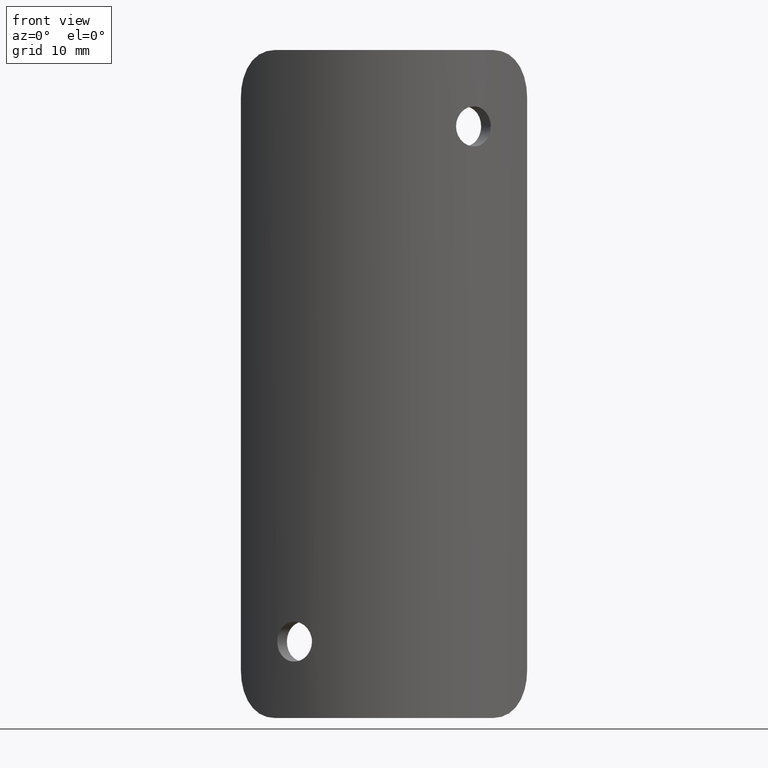
[diagram: clean part render]
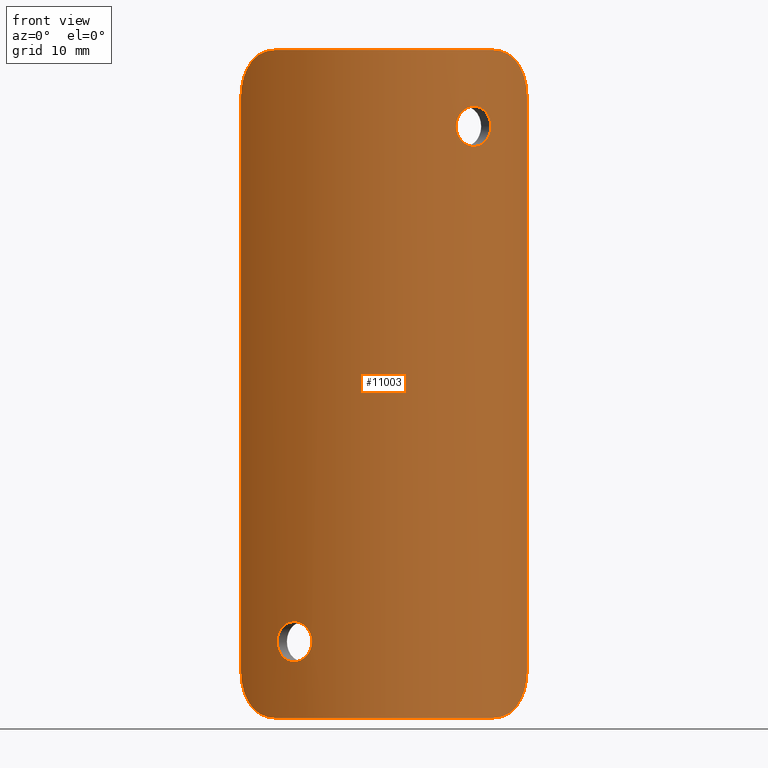
[diagram: same view with one face highlighted and labeled with its STEP entity id]
A machine part, front view. The second image highlights one B-rep face of the part: STEP entity #11003.
In plain terms, the highlighted cylindrical surface (partial cylindrical patch) has radius 18.85 mm, axis along (-0, -0, -1).
Its self-contained STEP definition (entity closure, byte-faithful):
#19 = CARTESIAN_POINT ( 'NONE',  ( -13.13015164007817300, 5.321686556596612900, 34.50831497015811100 ) ) ;
#37 = CARTESIAN_POINT ( 'NONE',  ( -10.51338375765405600, 3.203776520607993600, -25.33088558758116800 ) ) ;
#59 = CARTESIAN_POINT ( 'NONE',  ( -12.67933045533547400, 4.900725468774646200, 34.74704326749051100 ) ) ;
#93 = CARTESIAN_POINT ( 'NONE',  ( 10.32646688893215600, 3.078173070681105900, 25.16495022387030300 ) ) ;
#113 = CARTESIAN_POINT ( 'NONE',  ( -7.743421761078998600, 1.663821579482858400, -27.93157694758305400 ) ) ;
#123 = CARTESIAN_POINT ( 'NONE',  ( 11.01195622560009100, 3.550910832429657200, 26.06842305241695400 ) ) ;
#209 = CARTESIAN_POINT ( 'NONE',  ( 9.899673984342996400, 2.806842639295616100, 24.95541441226367900 ) ) ;
#213 = CARTESIAN_POINT ( 'NONE',  ( -14.98017149256965800, 7.407923962582005500, -30.65952120971341100 ) ) ;
#247 = CARTESIAN_POINT ( 'NONE',  ( 10.32031560746516300, 3.075759355938869600, 28.82351243419556800 ) ) ;
#465 = CARTESIAN_POINT ( 'NONE',  ( 11.69888619202606400, 4.065918172722079200, -35.00000000000000700 ) ) ;
#504 = CARTESIAN_POINT ( 'NONE',  ( 13.72052570706842700, 5.921521480554709200, -33.99723137050429500 ) ) ;
#541 = CARTESIAN_POINT ( 'NONE',  ( 14.20952464389284700, 6.461835705856504600, -33.32612342936333500 ) ) ;
#647 = LINE ( 'NONE', #2483, #2885 ) ;
#721 = CARTESIAN_POINT ( 'NONE',  ( -10.97032530617523200, 3.520762751134010900, -25.94449778256950300 ) ) ;
#869 = CARTESIAN_POINT ( 'NONE',  ( 15.00000000000000000, 7.434111948691858100, 30.00000000000000400 ) ) ;
#909 = CARTESIAN_POINT ( 'NONE',  ( -12.79561397726461000, 5.007378332720541900, 34.69256251187196900 ) ) ;
#932 = CARTESIAN_POINT ( 'NONE',  ( -10.76222466424109700, 3.373996215349865900, -28.38757086453804500 ) ) ;
#953 = CARTESIAN_POINT ( 'NONE',  ( -14.20952464389284700, 6.461835705856501900, 33.32612342936332800 ) ) ;
#970 = CARTESIAN_POINT ( 'NONE',  ( -10.22186499851923400, 3.011687216231862900, -25.11373298859302500 ) ) ;
#1010 = CARTESIAN_POINT ( 'NONE',  ( -11.18506494446488700, 3.677102379618469200, -26.72658611934871300 ) ) ;
#1028 = CARTESIAN_POINT ( 'NONE',  ( 0.0000000000000000000, 18.84999999999999800, 35.00000000000000000 ) ) ;
#1058 = CARTESIAN_POINT ( 'NONE',  ( -7.802517754997850800, 1.690481577072815400, -28.05215179452970300 ) ) ;
#1071 = CARTESIAN_POINT ( 'NONE',  ( 7.803702843594480000, 1.691021124236294900, 25.94566551623562800 ) ) ;
#1111 = CARTESIAN_POINT ( 'NONE',  ( 7.547582316038224300, 1.577000804923775100, 27.27341388065126900 ) ) ;
#1147 = CARTESIAN_POINT ( 'NONE',  ( 10.76156760088872100, 3.373547237440421800, 25.61169620064463000 ) ) ;
#1152 = CARTESIAN_POINT ( 'NONE',  ( -14.80252795410409100, 7.179022917103779400, -31.77452762741991800 ) ) ;
#1187 = CARTESIAN_POINT ( 'NONE',  ( -7.547675975752445900, 1.577041730929543000, -26.72229692378083100 ) ) ;
#1197 = CARTESIAN_POINT ( 'NONE',  ( 10.95931999346292700, 3.513062199229013900, 25.94784820547028700 ) ) ;
#1238 = B_SPLINE_CURVE_WITH_KNOTS ( 'NONE', 3,
 ( #4701, #2848, #4579, #11272, #5651, #59, #909, #19, #10281, #6599, #7370, #953, #8381, #5521, #7523, #2762, #12097, #7406, #9334, #1793 ),
 .UNSPECIFIED., .F., .F.,
 ( 4, 2, 2, 2, 2, 2, 2, 2, 2, 4 ),
 ( 0.0000000000000000000, 0.0009836212101209859900, 0.001475431815181479100, 0.001967242420241972000, 0.002950863630362963800, 0.003934484840483956100, 0.004918106050604948400, 0.005901727260725939800, 0.006885348470846933000, 0.007868969680967914000 ),
 .UNSPECIFIED. ) ;
#1296 = VERTEX_POINT ( 'NONE', #869 ) ;
#1467 = VERTEX_POINT ( 'NONE', #4363 ) ;
#1495 = ORIENTED_EDGE ( 'NONE', *, *, #9576, .T. ) ;
#1496 = CARTESIAN_POINT ( 'NONE',  ( 14.34637148200604900, 6.621400018217077100, -33.07387367562382300 ) ) ;
#1549 = ORIENTED_EDGE ( 'NONE', *, *, #9191, .F. ) ;
#1582 = CARTESIAN_POINT ( 'NONE',  ( 14.98017149256965700, 7.407923962582001000, 30.65952120971341100 ) ) ;
#1641 = CARTESIAN_POINT ( 'NONE',  ( -7.941579657941327100, 1.754396227087893400, -28.28034436123797600 ) ) ;
#1677 = CARTESIAN_POINT ( 'NONE',  ( -9.546897403301313600, 2.595815399152548300, -24.90013030035421000 ) ) ;
#1691 = FACE_BOUND ( 'NONE', #8215, .T. ) ;
#1793 = CARTESIAN_POINT ( 'NONE',  ( -15.00000000000000000, 7.434111948691858100, 30.00000000000000400 ) ) ;
#1936 = CARTESIAN_POINT ( 'NONE',  ( -10.84271566314196100, 3.429375602044745900, -25.71027966642272500 ) ) ;
#1946 = CARTESIAN_POINT ( 'NONE',  ( 8.498765328708636000, 2.024231947686559800, 25.17779043318735400 ) ) ;
#1977 = CARTESIAN_POINT ( 'NONE',  ( -11.14062285621115600, 3.644077656025110900, -26.45008953477983800 ) ) ;
#2023 = CARTESIAN_POINT ( 'NONE',  ( 7.547723005476593800, 1.577062281267307400, 26.86212448302749300 ) ) ;
#2061 = ORIENTED_EDGE ( 'NONE', *, *, #9171, .T. ) ;
#2065 = CARTESIAN_POINT ( 'NONE',  ( 8.196009412896124500, 1.874802220670377800, 28.58038646704340000 ) ) ;
#2088 = CARTESIAN_POINT ( 'NONE',  ( 15.00000000000000900, 7.434111948691859000, 30.33255577658930200 ) ) ;
#2095 = CARTESIAN_POINT ( 'NONE',  ( -7.792037792015971600, 1.685566189715159300, -25.94130874874157300 ) ) ;
#2105 = CARTESIAN_POINT ( 'NONE',  ( 10.83443733140413900, 3.424588383588896600, 25.71965563876202100 ) ) ;
#2108 = CARTESIAN_POINT ( 'NONE',  ( -14.68396447654466600, 7.029684993298095800, -32.23105437647467400 ) ) ;
#2370 = ORIENTED_EDGE ( 'NONE', *, *, #10991, .T. ) ;
#2398 = CARTESIAN_POINT ( 'NONE',  ( 13.13015164007817300, 5.321686556596610300, -34.50831497015811100 ) ) ;
#2448 = CARTESIAN_POINT ( 'NONE',  ( 13.34084726299949600, 5.530048740184309300, 34.35410636471512200 ) ) ;
#2483 = CARTESIAN_POINT ( 'NONE',  ( -15.00000000000000000, 7.434111948691858100, 35.00000000000000000 ) ) ;
#2489 = CARTESIAN_POINT ( 'NONE',  ( 13.13182814757395000, 5.323355394330199900, 34.50704592058959700 ) ) ;
#2527 = CARTESIAN_POINT ( 'NONE',  ( 14.21118996456291600, 6.463750795384947300, 33.32325900056221700 ) ) ;
#2576 = CARTESIAN_POINT ( 'NONE',  ( -7.547675975752445900, 1.577041730929543500, -26.99999999999999600 ) ) ;
#2598 = CARTESIAN_POINT ( 'NONE',  ( 11.95497879551214200, 4.272385519068501800, 34.96944093646262500 ) ) ;
#2762 = CARTESIAN_POINT ( 'NONE',  ( -14.84071259827717300, 7.227100401244682900, 31.62828450913172800 ) ) ;
#2848 = CARTESIAN_POINT ( 'NONE',  ( -11.69888619202606400, 4.065918172722077500, 35.00000000000000000 ) ) ;
#2880 = CARTESIAN_POINT ( 'NONE',  ( 8.293335127614803100, 1.922030846440790300, 28.66911441241883600 ) ) ;
#2885 = VECTOR ( 'NONE', #9423, 1000.000000000000000 ) ;
#2905 = CARTESIAN_POINT ( 'NONE',  ( -9.664311346808350600, 2.665389621115997100, -24.91388422341326600 ) ) ;
#2966 = CARTESIAN_POINT ( 'NONE',  ( 8.948699959812234500, 2.258999549346492100, 29.03247400759209300 ) ) ;
#3004 = CARTESIAN_POINT ( 'NONE',  ( 11.18498267164710600, 3.677041730929527600, 26.99999999999999300 ) ) ;
#3040 = CARTESIAN_POINT ( 'NONE',  ( 10.52156435148424400, 3.208488149845641700, 25.32137738487624600 ) ) ;
#3203 = VERTEX_POINT ( 'NONE', #10839 ) ;
#3381 = CARTESIAN_POINT ( 'NONE',  ( 11.95361290276277800, 4.271334323690715500, -34.96944981964144000 ) ) ;
#3437 = CARTESIAN_POINT ( 'NONE',  ( 14.83747567219039200, 7.223558456733861100, 31.61750925799333700 ) ) ;
#3578 = CARTESIAN_POINT ( 'NONE',  ( 15.00000000000000000, 7.434111948691858100, 35.00000000000000000 ) ) ;
#3660 = ORIENTED_EDGE ( 'NONE', *, *, #9219, .T. ) ;
#3730 = CARTESIAN_POINT ( 'NONE',  ( -9.186577891345676200, 2.387787515777438900, -29.09984883650374600 ) ) ;
#3770 = CARTESIAN_POINT ( 'NONE',  ( -10.21905871876042900, 3.009875463468283800, -28.88791606138746800 ) ) ;
#3811 = CARTESIAN_POINT ( 'NONE',  ( -7.560256068298254900, 1.582523350150956600, -27.27536106108461700 ) ) ;
#3828 = CARTESIAN_POINT ( 'NONE',  ( 9.184128065062470400, 2.388155674139663000, 29.08611577658673000 ) ) ;
#3832 = CARTESIAN_POINT ( 'NONE',  ( 15.00000000000000000, 7.434111948691858100, -30.00000000000000000 ) ) ;
#3859 = CARTESIAN_POINT ( 'NONE',  ( -8.951899394557900200, 2.260725158525468200, -24.96655314652416300 ) ) ;
#3869 = CARTESIAN_POINT ( 'NONE',  ( 10.51097706506492100, 3.202158510768383000, 28.67133427137871500 ) ) ;
#3909 = CARTESIAN_POINT ( 'NONE',  ( 8.199064079131844100, 1.876269676573900600, 25.41649985609896900 ) ) ;
#3912 = CARTESIAN_POINT ( 'NONE',  ( -14.35049252287866200, 6.626265360706073100, -33.06537433690047600 ) ) ;
#3995 = CARTESIAN_POINT ( 'NONE',  ( 7.560448049462499900, 1.582607064023407600, 26.72286752115000000 ) ) ;
#4063 = CARTESIAN_POINT ( 'NONE',  ( -8.500735319433173800, 2.025224186831480600, -25.17648756580444300 ) ) ;
#4100 = LINE ( 'NONE', #3578, #6310 ) ;
#4305 = CARTESIAN_POINT ( 'NONE',  ( 14.35049252287866000, 6.626265360706072200, 33.06537433690047600 ) ) ;
#4327 = CARTESIAN_POINT ( 'NONE',  ( 14.68316900310899000, 7.028701698478768900, -32.23332037477985100 ) ) ;
#4346 = CARTESIAN_POINT ( 'NONE',  ( 11.43459983570475400, 3.864259224272533100, 35.00000000000000000 ) ) ;
#4363 = CARTESIAN_POINT ( 'NONE',  ( -15.00000000000000000, 7.434111948691858100, -30.00000000000000000 ) ) ;
#4382 = CARTESIAN_POINT ( 'NONE',  ( 14.80252795410409100, 7.179022917103778500, 31.77452762741991800 ) ) ;
#4478 = ORIENTED_EDGE ( 'NONE', *, *, #8728, .T. ) ;
#4480 = CARTESIAN_POINT ( 'NONE',  ( -7.547675975752445900, 1.577041730929543900, -27.13885153810957400 ) ) ;
#4579 = CARTESIAN_POINT ( 'NONE',  ( -11.95361290276278000, 4.271334323690713800, 34.96944981964145400 ) ) ;
#4678 = CARTESIAN_POINT ( 'NONE',  ( -11.17377691495226900, 3.668763457184543300, -27.27713247885000000 ) ) ;
#4701 = CARTESIAN_POINT ( 'NONE',  ( -11.43459983570475400, 3.864259224272533100, 35.00000000000000000 ) ) ;
#4726 = CARTESIAN_POINT ( 'NONE',  ( -11.13010641786872900, 3.636717492896121700, -27.54639924132766300 ) ) ;
#4771 = CARTESIAN_POINT ( 'NONE',  ( 11.18498267164710400, 3.677041730929527600, 27.00000000000000000 ) ) ;
#4775 = CARTESIAN_POINT ( 'NONE',  ( 10.96881682527504000, 3.519680419723216300, 28.05869125125844500 ) ) ;
#4779 = CARTESIAN_POINT ( 'NONE',  ( -13.89981820611761000, 6.115317302555114400, -33.78430301069177900 ) ) ;
#4787 = FACE_OUTER_BOUND ( 'NONE', #6117, .T. ) ;
#4818 = CARTESIAN_POINT ( 'NONE',  ( -11.95497879551214600, 4.272385519068504500, -34.96944093646262500 ) ) ;
#4835 = VERTEX_POINT ( 'NONE', #5212 ) ;
#4849 = EDGE_CURVE ( 'NONE', #1296, #8657, #6512, .T. ) ;
#4857 = CARTESIAN_POINT ( 'NONE',  ( 11.18498267164710900, 3.677041730929526200, 27.27770307621914000 ) ) ;
#4862 = CARTESIAN_POINT ( 'NONE',  ( -12.68855081627455300, 4.906696841554019500, -34.75186880850954200 ) ) ;
#4890 = CARTESIAN_POINT ( 'NONE',  ( -7.935359284762964400, 1.750574934715463300, -25.70733926551120500 ) ) ;
#4897 = CARTESIAN_POINT ( 'NONE',  ( 8.605448724567226600, 2.078448845343191300, 28.88626701140699300 ) ) ;
#4934 = CARTESIAN_POINT ( 'NONE',  ( 8.949696711042387100, 2.259533378356182600, 24.96719185015457800 ) ) ;
#5212 = CARTESIAN_POINT ( 'NONE',  ( -15.00000000000000000, 7.434111948691858100, 30.00000000000000400 ) ) ;
#5228 = FACE_BOUND ( 'NONE', #7179, .T. ) ;
#5235 = CARTESIAN_POINT ( 'NONE',  ( 13.33688214395721300, 5.526113285370546400, -34.35707382129870500 ) ) ;
#5251 = CARTESIAN_POINT ( 'NONE',  ( 13.89981820611760600, 6.115317302555110900, 33.78430301069177200 ) ) ;
#5332 = EDGE_CURVE ( 'NONE', #1296, #3203, #4100, .T. ) ;
#5335 = CARTESIAN_POINT ( 'NONE',  ( 13.72666818670005800, 5.928007593610680600, 33.99069836172633100 ) ) ;
#5372 = CIRCLE ( 'NONE', #8145, 18.84999999999999800 ) ;
#5408 = CARTESIAN_POINT ( 'NONE',  ( -9.892917199459965600, 2.804101981249230500, -29.03280814984541500 ) ) ;
#5521 = CARTESIAN_POINT ( 'NONE',  ( -14.58466556701691100, 6.906610091249255800, 32.52433837335278400 ) ) ;
#5547 = CARTESIAN_POINT ( 'NONE',  ( 11.18498267164710400, 3.677041730929528000, 26.86114846189041900 ) ) ;
#5651 = CARTESIAN_POINT ( 'NONE',  ( -12.44269257146764600, 4.689241463995169400, 34.83953674898287300 ) ) ;
#5672 = CARTESIAN_POINT ( 'NONE',  ( -11.18494135967047100, 3.677011277162561600, -27.13787551697250300 ) ) ;
#5683 = CARTESIAN_POINT ( 'NONE',  ( -14.21118996456291900, 6.463750795384951800, -33.32325900056221700 ) ) ;
#5708 = CARTESIAN_POINT ( 'NONE',  ( -7.646651645682279500, 1.620547661594540400, -27.67731773939794900 ) ) ;
#5722 = CARTESIAN_POINT ( 'NONE',  ( 9.663405268161048100, 2.663083930138769900, 24.90015116349625400 ) ) ;
#5727 = CARTESIAN_POINT ( 'NONE',  ( -13.13182814757394800, 5.323355394330201700, -34.50704592058959700 ) ) ;
#5772 = CARTESIAN_POINT ( 'NONE',  ( -11.43459983570475600, 3.864259224272534900, -35.00000000000000000 ) ) ;
#5805 = CARTESIAN_POINT ( 'NONE',  ( 7.646643398335126700, 1.620544005198446100, 26.32270846050358100 ) ) ;
#5831 = CARTESIAN_POINT ( 'NONE',  ( -8.295939711534048300, 1.923306098442277600, -25.32866572862129200 ) ) ;
#5840 = CARTESIAN_POINT ( 'NONE',  ( 11.13062959861302500, 3.637100657343387100, 26.45610566316954100 ) ) ;
#5881 = CARTESIAN_POINT ( 'NONE',  ( 10.21905321163017000, 3.009871813570286200, 28.88792022171285700 ) ) ;
#6117 = EDGE_LOOP ( 'NONE', ( #10782, #1495, #8785, #8813, #1549, #3660, #2061, #4478 ) ) ;
#6140 = CARTESIAN_POINT ( 'NONE',  ( 12.67933045533546700, 4.900725468774645300, -34.74704326749049000 ) ) ;
#6223 = CARTESIAN_POINT ( 'NONE',  ( 14.84071259827718100, 7.227100401244685600, -31.62828450913172800 ) ) ;
#6225 = AXIS2_PLACEMENT_3D ( 'NONE', #1028, #6749, #7589 ) ;
#6259 = CARTESIAN_POINT ( 'NONE',  ( 11.43459983570475400, 3.864259224272533100, -35.00000000000000000 ) ) ;
#6310 = VECTOR ( 'NONE', #8079, 1000.000000000000000 ) ;
#6316 = CARTESIAN_POINT ( 'NONE',  ( 14.92131135071593900, 7.331406202439091600, 31.14192448130139100 ) ) ;
#6372 = CARTESIAN_POINT ( 'NONE',  ( -10.95826018761449600, 3.512305655980336300, -28.05433448376436100 ) ) ;
#6487 = CARTESIAN_POINT ( 'NONE',  ( -11.43459983570475400, 3.864259224272533100, 35.00000000000000000 ) ) ;
#6512 = B_SPLINE_CURVE_WITH_KNOTS ( 'NONE', 3,
 ( #10829, #2088, #1582, #6316, #7254, #3437, #4382, #11857, #10945, #4305, #2527, #5251, #5335, #2448, #2489, #11897, #9099, #2598, #7290, #4346 ),
 .UNSPECIFIED., .F., .F.,
 ( 4, 2, 2, 2, 2, 2, 2, 2, 2, 4 ),
 ( 0.0000000000000000000, 0.0009835240570124183800, 0.001475286085518628100, 0.001967048114024837200, 0.002950572171037236700, 0.003934096228049636200, 0.004917620285062036600, 0.005901144342074435300, 0.006884668399086835700, 0.007868192456099234300 ),
 .UNSPECIFIED. ) ;
#6599 = CARTESIAN_POINT ( 'NONE',  ( -13.72052570706842700, 5.921521480554710900, 33.99723137050429500 ) ) ;
#6623 = CARTESIAN_POINT ( 'NONE',  ( -10.32299746600029700, 3.077515398018821000, -25.17833705947940400 ) ) ;
#6667 = CARTESIAN_POINT ( 'NONE',  ( -11.01196559284833000, 3.550917579147770700, -27.93155381927318400 ) ) ;
#6680 = CARTESIAN_POINT ( 'NONE',  ( 11.13980829935943000, 3.643477977085712600, 27.55360079787932600 ) ) ;
#6703 = VERTEX_POINT ( 'NONE', #6487 ) ;
#6715 = CARTESIAN_POINT ( 'NONE',  ( 11.17394540387458500, 3.668887860813606400, 26.72463893891538300 ) ) ;
#6730 = CARTESIAN_POINT ( 'NONE',  ( 11.43459983570475400, 3.864259224272533100, -35.00000000000000000 ) ) ;
#6746 = CARTESIAN_POINT ( 'NONE',  ( -7.547675975752444100, 1.577041730929543900, -27.00000000000000000 ) ) ;
#6749 = DIRECTION ( 'NONE',  ( -0.0000000000000000000, -0.0000000000000000000, -1.000000000000000000 ) ) ;
#6760 = VERTEX_POINT ( 'NONE', #6730 ) ;
#6796 = CARTESIAN_POINT ( 'NONE',  ( 8.294740268604385800, 1.922721230537245600, 25.32972050250716800 ) ) ;
#6799 = CARTESIAN_POINT ( 'NONE',  ( -14.89679091842868900, 7.299655952550722300, -31.30137464960003500 ) ) ;
#6819 = CARTESIAN_POINT ( 'NONE',  ( -8.198491848301559400, 1.876000101663675800, -25.41720164754552200 ) ) ;
#6827 = CARTESIAN_POINT ( 'NONE',  ( 11.09781759551101600, 3.613079251746207800, 26.32268226060205800 ) ) ;
#7045 = DIRECTION ( 'NONE',  ( 0.0000000000000000000, 0.0000000000000000000, 1.000000000000000000 ) ) ;
#7179 = EDGE_LOOP ( 'NONE', ( #9841 ) ) ;
#7197 = CARTESIAN_POINT ( 'NONE',  ( 14.58466556701691100, 6.906610091249258500, -32.52433837335278400 ) ) ;
#7254 = CARTESIAN_POINT ( 'NONE',  ( 14.89679091842868900, 7.299655952550721400, 31.30137464960003900 ) ) ;
#7290 = CARTESIAN_POINT ( 'NONE',  ( 11.69894922198641800, 4.065966266599120100, 35.00000000000000000 ) ) ;
#7296 = CARTESIAN_POINT ( 'NONE',  ( -9.893877884558707000, 2.804698278630953600, -24.96752599240790000 ) ) ;
#7300 = B_SPLINE_CURVE_WITH_KNOTS ( 'NONE', 3,
 ( #9236, #5547, #6715, #5840, #6827, #123, #1197, #2105, #1147, #3040, #93, #209, #5722, #7678, #8618, #4934, #7713, #10521, #1946, #6796, #3909, #7638, #8663, #1071, #8495, #5805, #11505, #3995, #2023, #1111, #11389, #8582, #9616, #2065, #2880, #10554, #4897, #9451, #2966, #3828, #9528, #11351, #9578, #10483, #9488, #5881, #247, #3869, #11465, #10397, #4775, #6680, #4857, #3004 ),
 .UNSPECIFIED., .T., .F.,
 ( 4, 2, 2, 2, 2, 2, 2, 2, 2, 2, 2, 2, 2, 2, 2, 2, 2, 2, 2, 2, 2, 2, 2, 2, 2, 2, 4 ),
 ( 0.0000000000000000000, 0.0004106171740054360900, 0.0008212343480108721900, 0.001231851522016308200, 0.001642468696021744400, 0.002463703044032620200, 0.003284937392043496100, 0.003695554566048934500, 0.004106171740054372400, 0.004516788914059811200, 0.004927406088065249200, 0.005338023262070688000, 0.005748640436076125900, 0.006159257610081563800, 0.006569874784087001800, 0.007391109132097869000, 0.008212343480108734400, 0.008622960654114169800, 0.009033577828119605100, 0.009444195002125038700, 0.009854812176130474000, 0.01026542935013590800, 0.01067604652414134300, 0.01108666369814677700, 0.01149728087215221200, 0.01231851522016307700, 0.01313974956817394300 ),
 .UNSPECIFIED. ) ;
#7370 = CARTESIAN_POINT ( 'NONE',  ( -13.89777180013274500, 6.113079486173867300, 33.78692970968260300 ) ) ;
#7406 = CARTESIAN_POINT ( 'NONE',  ( -14.98017329535115600, 7.407921314052311200, 30.66103479541210000 ) ) ;
#7504 = CARTESIAN_POINT ( 'NONE',  ( -8.022217452401895000, 1.791982691806928600, -28.38830379935537000 ) ) ;
#7523 = CARTESIAN_POINT ( 'NONE',  ( -14.68316900310898800, 7.028701698478767100, 32.23332037477984400 ) ) ;
#7543 = CARTESIAN_POINT ( 'NONE',  ( -10.51208329699336900, 3.202904824863347200, -28.67027949749283500 ) ) ;
#7579 = CARTESIAN_POINT ( 'NONE',  ( -8.943944839109617500, 2.255052160022760000, -29.04458558773631100 ) ) ;
#7589 = DIRECTION ( 'NONE',  ( -1.000000000000000000, 0.0000000000000000000, 0.0000000000000000000 ) ) ;
#7623 = CARTESIAN_POINT ( 'NONE',  ( -7.547675975752445900, 1.577041730929543500, -26.99999999999999600 ) ) ;
#7638 = CARTESIAN_POINT ( 'NONE',  ( 8.021500094450399100, 1.791638147206600500, 25.61242913546194800 ) ) ;
#7678 = CARTESIAN_POINT ( 'NONE',  ( 9.307298405738317000, 2.457456430013536000, 24.89992489511968500 ) ) ;
#7713 = CARTESIAN_POINT ( 'NONE',  ( 8.834139861668543100, 2.197772541344908100, 25.00685871070014000 ) ) ;
#7716 = CARTESIAN_POINT ( 'NONE',  ( 11.43459983570475400, 3.864259224272533100, 35.00000000000000000 ) ) ;
#7807 = EDGE_CURVE ( 'NONE', #10343, #10343, #11866, .T. ) ;
#8002 = CARTESIAN_POINT ( 'NONE',  ( 12.32212530451492300, 4.584177501366871100, -34.87778191851187900 ) ) ;
#8078 = CARTESIAN_POINT ( 'NONE',  ( 0.0000000000000000000, 18.84999999999999800, -35.00000000000000000 ) ) ;
#8079 = DIRECTION ( 'NONE',  ( -0.0000000000000000000, -0.0000000000000000000, -1.000000000000000000 ) ) ;
#8145 = AXIS2_PLACEMENT_3D ( 'NONE', #11137, #10366, #11316 ) ;
#8151 = CARTESIAN_POINT ( 'NONE',  ( 14.98017329535115600, 7.407921314052315700, -30.66103479541210700 ) ) ;
#8174 = CARTESIAN_POINT ( 'NONE',  ( -10.32215990713356200, 3.076969298379081100, -28.82220956681265300 ) ) ;
#8215 = EDGE_LOOP ( 'NONE', ( #2370 ) ) ;
#8265 = VERTEX_POINT ( 'NONE', #4771 ) ;
#8273 = CARTESIAN_POINT ( 'NONE',  ( 14.99999999999999600, 7.434111948691859000, -30.33254091249381900 ) ) ;
#8381 = CARTESIAN_POINT ( 'NONE',  ( -14.34637148200604900, 6.621400018217075400, 33.07387367562382300 ) ) ;
#8399 = CARTESIAN_POINT ( 'NONE',  ( -8.495569340415418200, 2.021103878186350000, -28.83504977612970400 ) ) ;
#8483 = CARTESIAN_POINT ( 'NONE',  ( -10.60294780471639900, 3.264448749110639500, -25.41961353295661000 ) ) ;
#8495 = CARTESIAN_POINT ( 'NONE',  ( 7.743411234625599900, 1.663816840566972400, 26.06844618072682000 ) ) ;
#8532 = CARTESIAN_POINT ( 'NONE',  ( -10.00721600442921400, 2.875197850204165700, -25.00807698720643300 ) ) ;
#8548 = CARTESIAN_POINT ( 'NONE',  ( -13.72666818670006000, 5.928007593610684200, -33.99069836172633100 ) ) ;
#8582 = CARTESIAN_POINT ( 'NONE',  ( 7.790346225068804000, 1.684800972639869600, 28.05550221743049000 ) ) ;
#8618 = CARTESIAN_POINT ( 'NONE',  ( 9.185941761533781500, 2.389163815369821800, 24.91357929243123000 ) ) ;
#8657 = VERTEX_POINT ( 'NONE', #7716 ) ;
#8663 = CARTESIAN_POINT ( 'NONE',  ( 7.942502992359818500, 1.754825817021194800, 25.71838217345343800 ) ) ;
#8728 = EDGE_CURVE ( 'NONE', #1467, #10698, #12159, .T. ) ;
#8785 = ORIENTED_EDGE ( 'NONE', *, *, #5332, .F. ) ;
#8813 = ORIENTED_EDGE ( 'NONE', *, *, #4849, .T. ) ;
#8851 = DIRECTION ( 'NONE',  ( 1.000000000000000000, 0.0000000000000000000, 0.0000000000000000000 ) ) ;
#8894 = CYLINDRICAL_SURFACE ( 'NONE', #6225, 18.84999999999999800 ) ;
#9099 = CARTESIAN_POINT ( 'NONE',  ( 12.45094737796170900, 4.693649080817577300, 34.84540144987070700 ) ) ;
#9171 = EDGE_CURVE ( 'NONE', #4835, #1467, #647, .T. ) ;
#9191 = EDGE_CURVE ( 'NONE', #6703, #8657, #5372, .T. ) ;
#9219 = EDGE_CURVE ( 'NONE', #6703, #4835, #1238, .T. ) ;
#9236 = CARTESIAN_POINT ( 'NONE',  ( 11.18498267164710600, 3.677041730929527600, 26.99999999999999300 ) ) ;
#9334 = CARTESIAN_POINT ( 'NONE',  ( -14.99999999999999600, 7.434111948691855400, 30.33254091249382300 ) ) ;
#9394 = CARTESIAN_POINT ( 'NONE',  ( -8.285164440086694200, 1.917302058984625200, -28.67862261512375000 ) ) ;
#9423 = DIRECTION ( 'NONE',  ( -0.0000000000000000000, -0.0000000000000000000, -1.000000000000000000 ) ) ;
#9442 = CARTESIAN_POINT ( 'NONE',  ( -7.609442496649502500, 1.604142336157732100, -27.54389433683046900 ) ) ;
#9451 = CARTESIAN_POINT ( 'NONE',  ( 8.830976479938657400, 2.196095644108071900, 28.99192301279356000 ) ) ;
#9453 = CARTESIAN_POINT ( 'NONE',  ( -14.92131135071594300, 7.331406202439093400, -31.14192448130139500 ) ) ;
#9477 = CARTESIAN_POINT ( 'NONE',  ( -9.306493012161896100, 2.456984570184481700, -24.89987152434559200 ) ) ;
#9488 = CARTESIAN_POINT ( 'NONE',  ( 10.00415605547697800, 2.873280339121009800, 28.99315256883030800 ) ) ;
#9528 = CARTESIAN_POINT ( 'NONE',  ( 9.303088080484867500, 2.455052020993540500, 29.09986969964580100 ) ) ;
#9576 = EDGE_CURVE ( 'NONE', #6760, #3203, #11305, .T. ) ;
#9578 = CARTESIAN_POINT ( 'NONE',  ( 9.661090522088406000, 2.663466323505842200, 29.08661155290696600 ) ) ;
#9616 = CARTESIAN_POINT ( 'NONE',  ( 7.933294639276194700, 1.749620590729908700, 28.28972033357726800 ) ) ;
#9621 = CARTESIAN_POINT ( 'NONE',  ( -15.00000000000000900, 7.434111948691859000, -30.33255577658929500 ) ) ;
#9681 = CARTESIAN_POINT ( 'NONE',  ( -8.834167067724827400, 2.197786882093418100, -25.00684743116969200 ) ) ;
#9841 = ORIENTED_EDGE ( 'NONE', *, *, #7807, .T. ) ;
#9946 = CARTESIAN_POINT ( 'NONE',  ( 12.79561397726460800, 5.007378332720540100, -34.69256251187196200 ) ) ;
#9988 = AXIS2_PLACEMENT_3D ( 'NONE', #8078, #7045, #8851 ) ;
#10281 = CARTESIAN_POINT ( 'NONE',  ( -13.33688214395720300, 5.526113285370546400, 34.35707382129869800 ) ) ;
#10306 = CARTESIAN_POINT ( 'NONE',  ( -11.09782488571649700, 3.613084565960309900, -27.67729153949641600 ) ) ;
#10343 = VERTEX_POINT ( 'NONE', #6746 ) ;
#10344 = CARTESIAN_POINT ( 'NONE',  ( -10.60014961750716200, 3.262537058502195600, -28.58350014390103800 ) ) ;
#10366 = DIRECTION ( 'NONE',  ( 0.0000000000000000000, 0.0000000000000000000, 1.000000000000000000 ) ) ;
#10397 = CARTESIAN_POINT ( 'NONE',  ( 10.84085685426313000, 3.428064738596165100, 28.29266073448878400 ) ) ;
#10399 = CARTESIAN_POINT ( 'NONE',  ( -14.58626420955229900, 6.908592185583636100, -32.51962279095426600 ) ) ;
#10446 = CARTESIAN_POINT ( 'NONE',  ( -12.45094737796171100, 4.693649080817575500, -34.84540144987070000 ) ) ;
#10483 = CARTESIAN_POINT ( 'NONE',  ( 9.890783745799877700, 2.802790291452943000, 29.03344685347583000 ) ) ;
#10513 = CIRCLE ( 'NONE', #9988, 18.84999999999999800 ) ;
#10521 = CARTESIAN_POINT ( 'NONE',  ( 8.608420888365271800, 2.079973278522655000, 25.11208393861254300 ) ) ;
#10524 = CARTESIAN_POINT ( 'NONE',  ( -15.00000000000000000, 7.434111948691858100, -30.00000000000000000 ) ) ;
#10554 = CARTESIAN_POINT ( 'NONE',  ( 8.497873613114249400, 2.023779650250674400, 28.82166294052058900 ) ) ;
#10631 = CARTESIAN_POINT ( 'NONE',  ( -8.608426802834785000, 2.079976222888364900, -25.11207977828715700 ) ) ;
#10662 = EDGE_CURVE ( 'NONE', #10698, #6760, #10513, .T. ) ;
#10698 = VERTEX_POINT ( 'NONE', #10852 ) ;
#10782 = ORIENTED_EDGE ( 'NONE', *, *, #10662, .T. ) ;
#10812 = CARTESIAN_POINT ( 'NONE',  ( 12.44269257146764900, 4.689241463995169400, -34.83953674898286600 ) ) ;
#10829 = CARTESIAN_POINT ( 'NONE',  ( 15.00000000000000000, 7.434111948691858100, 30.00000000000000400 ) ) ;
#10839 = CARTESIAN_POINT ( 'NONE',  ( 15.00000000000000000, 7.434111948691858100, -30.00000000000000000 ) ) ;
#10852 = CARTESIAN_POINT ( 'NONE',  ( -11.43459983570475600, 3.864259224272534900, -35.00000000000000000 ) ) ;
#10897 = CARTESIAN_POINT ( 'NONE',  ( 14.90060976783009400, 7.304499354249878200, -31.31004028138399800 ) ) ;
#10945 = CARTESIAN_POINT ( 'NONE',  ( 14.58626420955229900, 6.908592185583636100, 32.51962279095426600 ) ) ;
#10991 = EDGE_CURVE ( 'NONE', #8265, #8265, #7300, .T. ) ;
#11003 = ADVANCED_FACE ( 'NONE', ( #5228, #1691, #4787 ), #8894, .T. ) ;
#11043 = CARTESIAN_POINT ( 'NONE',  ( -9.542709961382188400, 2.593371355034872500, -29.10007510488031800 ) ) ;
#11137 = CARTESIAN_POINT ( 'NONE',  ( 0.0000000000000000000, 18.84999999999999800, 35.00000000000000000 ) ) ;
#11252 = CARTESIAN_POINT ( 'NONE',  ( -9.187404102011871700, 2.389983341363189700, -24.91338844709303800 ) ) ;
#11272 = CARTESIAN_POINT ( 'NONE',  ( -12.32212530451491400, 4.584177501366867500, 34.87778191851187200 ) ) ;
#11304 = CARTESIAN_POINT ( 'NONE',  ( -14.83747567219039200, 7.223558456733861100, -31.61750925799332300 ) ) ;
#11305 = B_SPLINE_CURVE_WITH_KNOTS ( 'NONE', 3,
 ( #6259, #465, #3381, #8002, #10812, #6140, #9946, #2398, #5235, #504, #11806, #541, #1496, #7197, #4327, #6223, #10897, #8151, #8273, #3832 ),
 .UNSPECIFIED., .F., .F.,
 ( 4, 2, 2, 2, 2, 2, 2, 2, 2, 4 ),
 ( 4.336808689942017300E-019, 0.0009836212101209812200, 0.001475431815181473500, 0.001967242420241965900, 0.002950863630362958200, 0.003934484840483950900, 0.004918106050604944100, 0.005901727260725936300, 0.006885348470846929500, 0.007868969680967922600 ),
 .UNSPECIFIED. ) ;
#11316 = DIRECTION ( 'NONE',  ( 1.000000000000000000, 0.0000000000000000000, 0.0000000000000000000 ) ) ;
#11351 = CARTESIAN_POINT ( 'NONE',  ( 9.543521300769379300, 2.593832916417572900, 29.10012847565441200 ) ) ;
#11353 = CARTESIAN_POINT ( 'NONE',  ( -13.34084726299950100, 5.530048740184311900, -34.35410636471510800 ) ) ;
#11377 = CARTESIAN_POINT ( 'NONE',  ( -9.662531422656773100, 2.664322984512169400, -29.08642070756876300 ) ) ;
#11389 = CARTESIAN_POINT ( 'NONE',  ( 7.598403609749890800, 1.598976420552060200, 27.54991046522015100 ) ) ;
#11393 = CARTESIAN_POINT ( 'NONE',  ( -11.69894922198641400, 4.065966266599121900, -34.99999999999999300 ) ) ;
#11465 = CARTESIAN_POINT ( 'NONE',  ( 10.60066919164277800, 3.262897837482926300, 28.58279835245448600 ) ) ;
#11505 = CARTESIAN_POINT ( 'NONE',  ( 7.610035917166811700, 1.604403841749432000, 26.45360075867233400 ) ) ;
#11530 = CARTESIAN_POINT ( 'NONE',  ( -7.599330225371391900, 1.599382008008776400, -26.44639920212069100 ) ) ;
#11806 = CARTESIAN_POINT ( 'NONE',  ( 13.89777180013273900, 6.113079486173862900, -33.78692970968258900 ) ) ;
#11857 = CARTESIAN_POINT ( 'NONE',  ( 14.68396447654466600, 7.029684993298096700, 32.23105437647467400 ) ) ;
#11866 = B_SPLINE_CURVE_WITH_KNOTS ( 'NONE', 3,
 ( #2576, #4480, #3811, #9442, #5708, #113, #1058, #1641, #7504, #9394, #8399, #7579, #3730, #11043, #11377, #5408, #11988, #3770, #8174, #7543, #10344, #932, #12202, #6372, #6667, #10306, #4726, #4678, #5672, #1010, #1977, #721, #1936, #8483, #37, #6623, #970, #8532, #7296, #2905, #1677, #9477, #11252, #3859, #9681, #10631, #4063, #5831, #6819, #4890, #2095, #11530, #1187, #7623 ),
 .UNSPECIFIED., .T., .F.,
 ( 4, 2, 2, 2, 2, 2, 2, 2, 2, 2, 2, 2, 2, 2, 2, 2, 2, 2, 2, 2, 2, 2, 2, 2, 2, 2, 4 ),
 ( 0.0000000000000000000, 0.0004106171740054284000, 0.0008212343480108567900, 0.001231851522016285200, 0.001642468696021715100, 0.002463703044032582100, 0.003284937392043449300, 0.003695554566048885000, 0.004106171740054320400, 0.004516788914059755700, 0.004927406088065191900, 0.005338023262070628100, 0.005748640436076062600, 0.006159257610081498800, 0.006569874784086935000, 0.007391109132097816900, 0.008212343480108696300, 0.008622960654114135100, 0.009033577828119572100, 0.009444195002125009200, 0.009854812176130446300, 0.01026542935013588300, 0.01067604652414132000, 0.01108666369814675900, 0.01149728087215219500, 0.01231851522016307000, 0.01313974956817394800 ),
 .UNSPECIFIED. ) ;
#11897 = CARTESIAN_POINT ( 'NONE',  ( 12.68855081627455800, 4.906696841554016000, 34.75186880850953500 ) ) ;
#11988 = CARTESIAN_POINT ( 'NONE',  ( -10.00418207795764400, 2.873296729882637300, -28.99314128929985700 ) ) ;
#12097 = CARTESIAN_POINT ( 'NONE',  ( -14.90060976783009200, 7.304499354249872800, 31.31004028138400500 ) ) ;
#12159 = B_SPLINE_CURVE_WITH_KNOTS ( 'NONE', 3,
 ( #10524, #9621, #213, #9453, #6799, #11304, #1152, #2108, #10399, #3912, #5683, #4779, #8548, #11353, #5727, #4862, #10446, #4818, #11393, #5772 ),
 .UNSPECIFIED., .F., .F.,
 ( 4, 2, 2, 2, 2, 2, 2, 2, 2, 4 ),
 ( 0.0000000000000000000, 0.0009835240570124183800, 0.001475286085518628100, 0.001967048114024837200, 0.002950572171037236700, 0.003934096228049636200, 0.004917620285062036600, 0.005901144342074435300, 0.006884668399086835700, 0.007868192456099234300 ),
 .UNSPECIFIED. ) ;
#12202 = CARTESIAN_POINT ( 'NONE',  ( -10.83360362839945000, 3.424003547492954400, -28.28161782654657200 ) ) ;